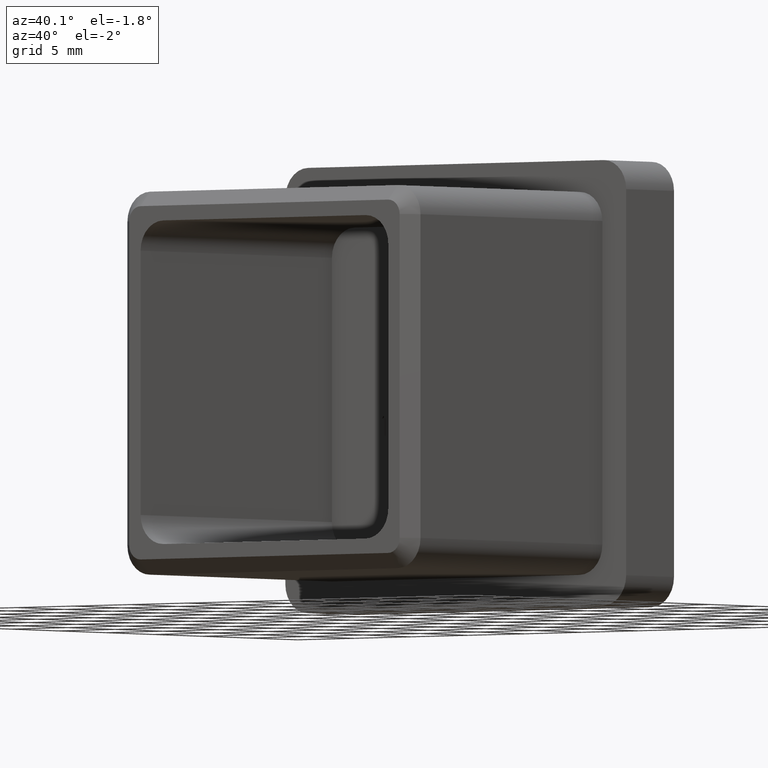
[diagram: clean part render]
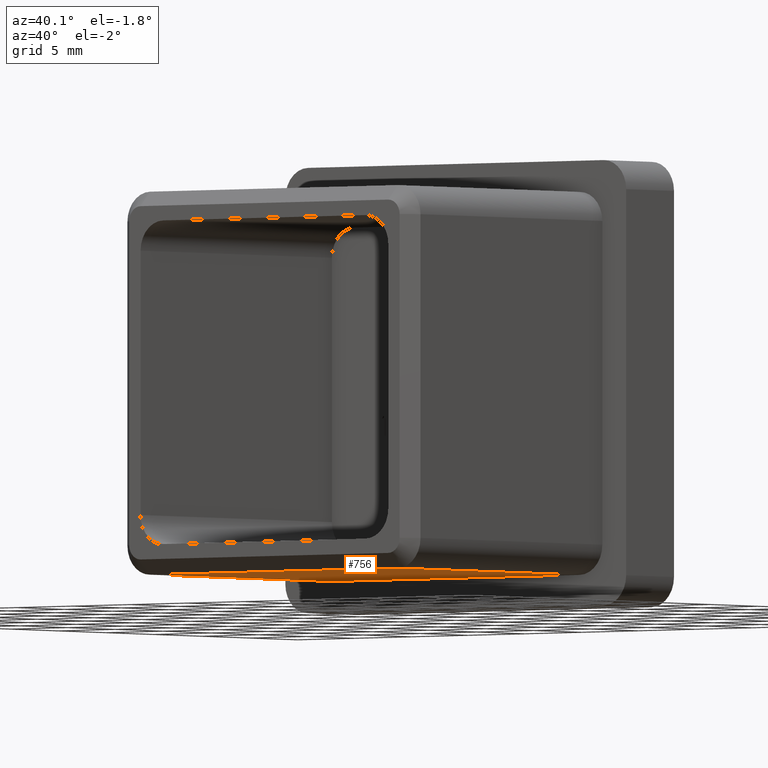
[diagram: same view with one face highlighted and labeled with its STEP entity id]
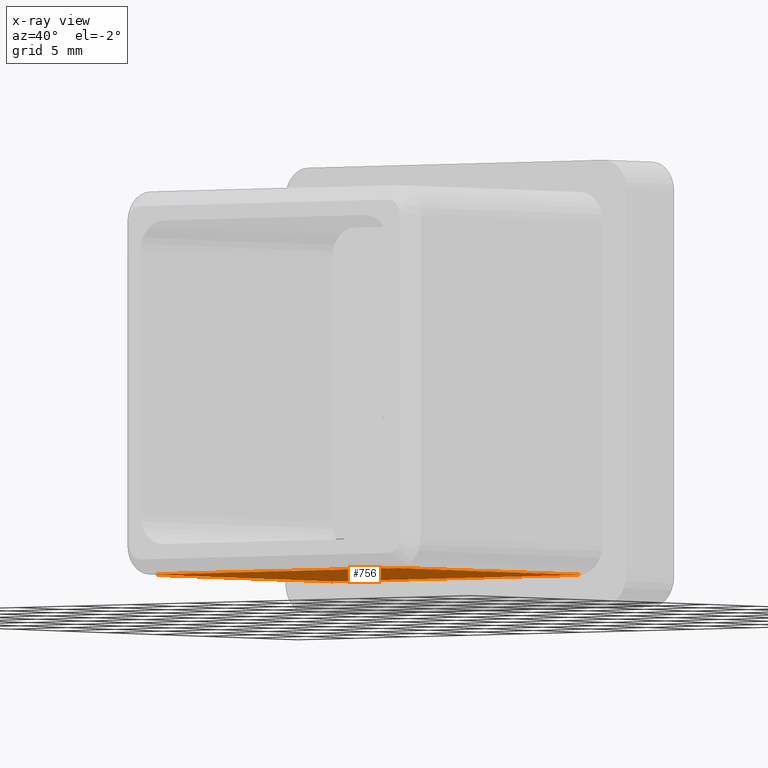
[diagram: x-ray of the same camera — body ghosted, the highlighted face saturated]
A machine part, auxiliary view. The second image highlights one B-rep face of the part: STEP entity #756.
The next image is the same camera in x-ray: the body ghosted, the highlighted face saturated — about 0% of this face is hidden behind the body in this view.
In plain terms, the highlighted planar face has unit normal (-0, 0, 1).
Its self-contained STEP definition (entity closure, byte-faithful):
#41 = VECTOR ( 'NONE', #11665, 1000.000000000000000 ) ;
#343 = ORIENTED_EDGE ( 'NONE', *, *, #12878, .T. ) ;
#756 = ADVANCED_FACE ( 'NONE', ( #9358 ), #2097, .F. ) ;
#764 = CARTESIAN_POINT ( 'NONE',  ( -10.90000000000000600, 0.0000000000000000000, -12.90000000000000600 ) ) ;
#2097 = PLANE ( 'NONE',  #9618 ) ;
#2277 = LINE ( 'NONE', #6387, #12669 ) ;
#2411 = CARTESIAN_POINT ( 'NONE',  ( -10.90000000000000600, -19.00000000000000000, -12.90000000000000600 ) ) ;
#2622 = LINE ( 'NONE', #15650, #41 ) ;
#2680 = CARTESIAN_POINT ( 'NONE',  ( 10.90000000000000400, -19.00000000000000000, -12.90000000000000600 ) ) ;
#3135 = LINE ( 'NONE', #10350, #13083 ) ;
#5001 = EDGE_CURVE ( 'NONE', #12342, #12366, #2622, .T. ) ;
#6140 = DIRECTION ( 'NONE',  ( 1.000000000000000000, 0.0000000000000000000, 0.0000000000000000000 ) ) ;
#6387 = CARTESIAN_POINT ( 'NONE',  ( -12.90000000000000600, -0.0000000000000000000, -12.90000000000000600 ) ) ;
#6645 = CARTESIAN_POINT ( 'NONE',  ( -10.90000000000000600, -20.00000000000000000, -12.90000000000000600 ) ) ;
#6827 = ORIENTED_EDGE ( 'NONE', *, *, #5001, .T. ) ;
#6839 = CARTESIAN_POINT ( 'NONE',  ( 10.90000000000000400, 0.0000000000000000000, -12.90000000000000600 ) ) ;
#7618 = DIRECTION ( 'NONE',  ( -0.0000000000000000000, 0.0000000000000000000, 1.000000000000000000 ) ) ;
#7948 = ORIENTED_EDGE ( 'NONE', *, *, #12775, .T. ) ;
#9358 = FACE_OUTER_BOUND ( 'NONE', #14207, .T. ) ;
#9618 = AXIS2_PLACEMENT_3D ( 'NONE', #15666, #7618, #6140 ) ;
#10350 = CARTESIAN_POINT ( 'NONE',  ( -10.90000000000000600, -19.00000000000000000, -12.90000000000000600 ) ) ;
#11665 = DIRECTION ( 'NONE',  ( -0.0000000000000000000, -1.000000000000000000, -0.0000000000000000000 ) ) ;
#12023 = VECTOR ( 'NONE', #16093, 1000.000000000000000 ) ;
#12342 = VERTEX_POINT ( 'NONE', #6839 ) ;
#12366 = VERTEX_POINT ( 'NONE', #2680 ) ;
#12584 = EDGE_CURVE ( 'NONE', #17383, #16679, #13502, .T. ) ;
#12669 = VECTOR ( 'NONE', #13120, 1000.000000000000000 ) ;
#12775 = EDGE_CURVE ( 'NONE', #12366, #17383, #3135, .T. ) ;
#12878 = EDGE_CURVE ( 'NONE', #16679, #12342, #2277, .T. ) ;
#13083 = VECTOR ( 'NONE', #13239, 1000.000000000000000 ) ;
#13120 = DIRECTION ( 'NONE',  ( 1.000000000000000000, 0.0000000000000000000, 0.0000000000000000000 ) ) ;
#13239 = DIRECTION ( 'NONE',  ( -1.000000000000000000, 0.0000000000000000000, -0.0000000000000000000 ) ) ;
#13502 = LINE ( 'NONE', #6645, #12023 ) ;
#14207 = EDGE_LOOP ( 'NONE', ( #6827, #7948, #17623, #343 ) ) ;
#15650 = CARTESIAN_POINT ( 'NONE',  ( 10.90000000000000400, -20.00000000000000000, -12.90000000000000600 ) ) ;
#15666 = CARTESIAN_POINT ( 'NONE',  ( -12.90000000000000600, -20.00000000000000000, -12.90000000000000600 ) ) ;
#16093 = DIRECTION ( 'NONE',  ( 0.0000000000000000000, 1.000000000000000000, -0.0000000000000000000 ) ) ;
#16679 = VERTEX_POINT ( 'NONE', #764 ) ;
#17383 = VERTEX_POINT ( 'NONE', #2411 ) ;
#17623 = ORIENTED_EDGE ( 'NONE', *, *, #12584, .T. ) ;